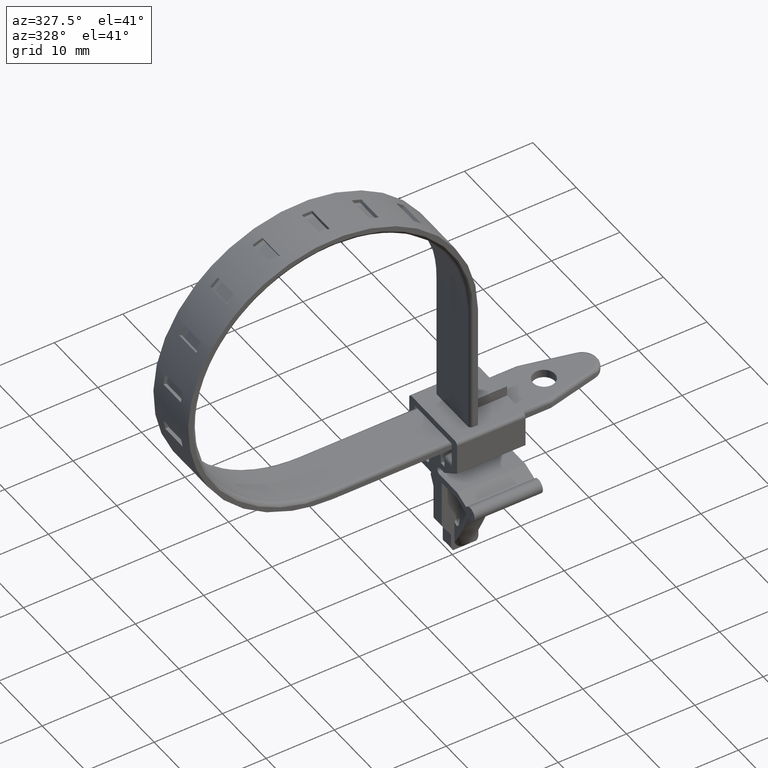
[diagram: clean part render]
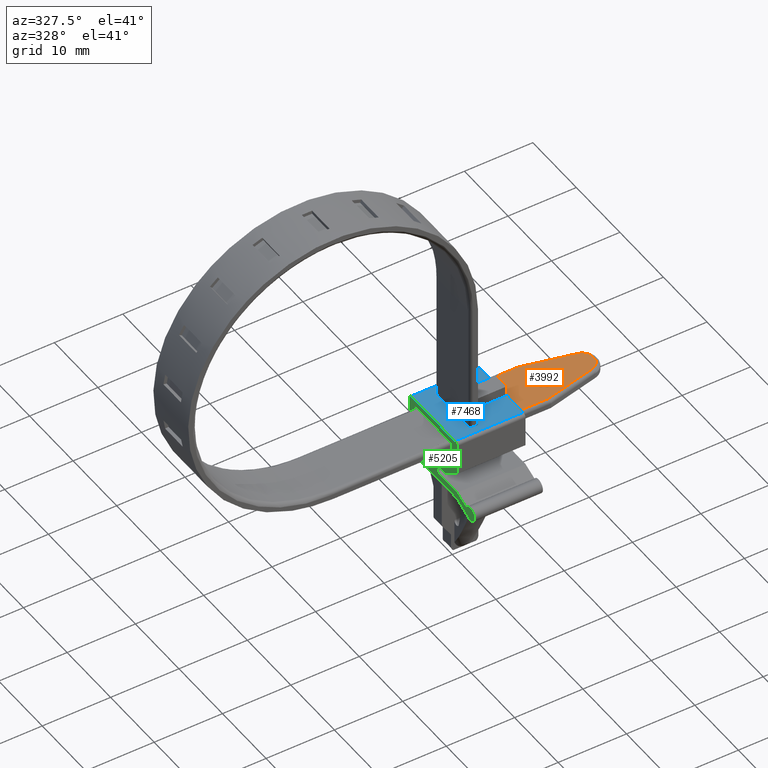
[diagram: same view with three faces highlighted in distinct colors, each labeled with its STEP entity id]
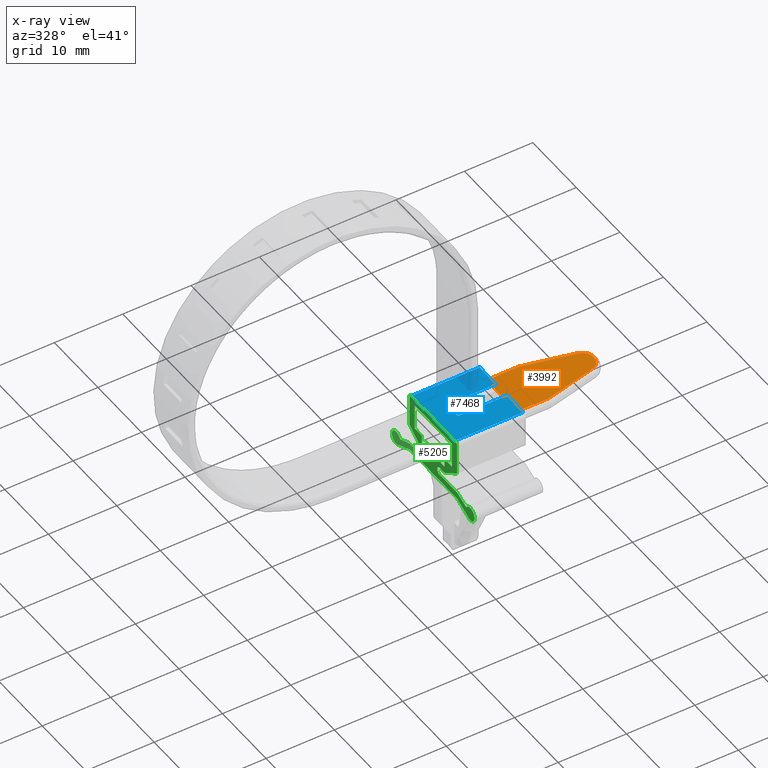
[diagram: x-ray of the same camera — body ghosted, the three highlighted faces saturated]
A machine part, auxiliary view with three faces highlighted in distinct colors.
The next image is the same camera in x-ray (body ghosted, the three faces saturated) — at least one of them is partly hidden behind the body in this view.
Their STEP definitions:

[orange] entity #3992 — the highlighted face is a freeform B-spline surface patch.
#79=CARTESIAN_POINT('',(24.521454595066182,1.141200605771610,-10.000000000000121));
#80=VERTEX_POINT('',#79);
#86=CARTESIAN_POINT('',(23.399999039114409,1.599999999999712,-10.000000000000121));
#87=VERTEX_POINT('',#86);
#88=CARTESIAN_POINT('',(24.521454595066182,1.141200605771610,-10.000000000000121));
#89=CARTESIAN_POINT('',(24.401483454346309,1.259223014013674,-10.000000000000130));
#90=CARTESIAN_POINT('',(24.177227983787269,1.418760716767663,-10.000000000000099));
#91=CARTESIAN_POINT('',(23.788314191387538,1.566940195108223,-10.000000000000140));
#92=CARTESIAN_POINT('',(23.542393760631739,1.600046267257556,-10.000000000000099));
#93=CARTESIAN_POINT('',(23.399999039114409,1.599999999999712,-10.000000000000121));
#94=B_SPLINE_CURVE_WITH_KNOTS('',3,(#88,#89,#90,#91,#92,#93),.UNSPECIFIED.,.F.,.U.,(4,1,1,4),(0.000000016535487,0.504854212649994,0.815521261713254,1.242705706128927),.UNSPECIFIED.);
#95=EDGE_CURVE('',#80,#87,#94,.T.);
#97=CARTESIAN_POINT('',(21.800000000000001,0.0,-10.000000000000121));
#98=VERTEX_POINT('',#97);
#99=CARTESIAN_POINT('',(23.399999039114409,1.599999999999712,-10.000000000000121));
#100=CARTESIAN_POINT('',(23.229814022617589,1.600106159863378,-10.000000000000130));
#101=CARTESIAN_POINT('',(22.954997995737379,1.555702594214439,-10.000000000000099));
#102=CARTESIAN_POINT('',(22.606272545159921,1.401112644741011,-10.000000000000160));
#103=CARTESIAN_POINT('',(22.326671302114860,1.204204025141999,-10.000000000000110));
#104=CARTESIAN_POINT('',(22.060912746907949,0.911067447824980,-10.000000000000110));
#105=CARTESIAN_POINT('',(21.852689811508139,0.497381472955625,-10.000000000000130));
#106=CARTESIAN_POINT('',(21.799909325162481,0.170177533660806,-10.000000000000110));
#107=CARTESIAN_POINT('',(21.800000000000001,0.0,-10.000000000000121));
#108=B_SPLINE_CURVE_WITH_KNOTS('',3,(#99,#100,#101,#102,#103,#104,#105,#106,#107),.UNSPECIFIED.,.F.,.U.,(4,1,1,1,1,1,4),(0.000000065411048,0.510517874963618,0.824689489460210,1.138872344818029,1.531548634256112,2.002818839806434,2.513336649352340),.UNSPECIFIED.);
#109=EDGE_CURVE('',#87,#98,#108,.T.);
#111=CARTESIAN_POINT('',(23.400000960885581,-1.599999999999712,-10.000000000000121));
#112=VERTEX_POINT('',#111);
#113=CARTESIAN_POINT('',(21.800000000000001,0.0,-10.000000000000121));
#114=CARTESIAN_POINT('',(21.799949961637211,-0.143994993570665,-10.000000000000130));
#115=CARTESIAN_POINT('',(21.833812773775321,-0.392676429516095,-10.000000000000099));
#116=CARTESIAN_POINT('',(21.961628672302499,-0.724024829579062,-10.000000000000149));
#117=CARTESIAN_POINT('',(22.130529255174711,-0.990696969214101,-10.000000000000110));
#118=CARTESIAN_POINT('',(22.402527660671019,-1.276621878832268,-10.000000000000149));
#119=CARTESIAN_POINT('',(22.824136014343900,-1.529211405444238,-10.000000000000069));
#120=CARTESIAN_POINT('',(23.203627815886492,-1.600178444852096,-10.000000000000171));
#121=CARTESIAN_POINT('',(23.400000960885581,-1.599999999999712,-10.000000000000121));
#122=B_SPLINE_CURVE_WITH_KNOTS('',3,(#113,#114,#115,#116,#117,#118,#119,#120,#121),.UNSPECIFIED.,.F.,.U.,(4,1,1,1,1,1,4),(0.000000064094760,0.431979118327400,0.746150868409657,1.060333626257324,1.374464961943820,1.924276151108963,2.513337732521369),.UNSPECIFIED.);
#123=EDGE_CURVE('',#98,#112,#122,.T.);
#125=CARTESIAN_POINT('',(24.541200945452381,-1.121454934756597,-10.000000000000121));
#126=VERTEX_POINT('',#125);
#127=CARTESIAN_POINT('',(23.400000960885581,-1.599999999999712,-10.000000000000121));
#128=CARTESIAN_POINT('',(23.572077223514800,-1.600098059522465,-10.000000000000110));
#129=CARTESIAN_POINT('',(23.849947777874771,-1.554711375579694,-10.000000000000130));
#130=CARTESIAN_POINT('',(24.238254332023232,-1.380410037105261,-10.000000000000130));
#131=CARTESIAN_POINT('',(24.439187839481580,-1.225336072797726,-10.000000000000140));
#132=CARTESIAN_POINT('',(24.541200945452381,-1.121454934756597,-10.000000000000121));
#133=B_SPLINE_CURVE_WITH_KNOTS('',3,(#127,#128,#129,#130,#131,#132),.UNSPECIFIED.,.F.,.U.,(4,1,1,4),(0.000000018446106,0.516199406832948,0.833847268245703,1.270631505452543),.UNSPECIFIED.);
#134=EDGE_CURVE('',#112,#126,#133,.T.);
#218=CARTESIAN_POINT('',(25.0,0.0,-10.000000000000121));
#219=VERTEX_POINT('',#218);
#220=CARTESIAN_POINT('',(24.541200945452381,-1.121454934756597,-10.000000000000121));
#221=CARTESIAN_POINT('',(24.641046770110400,-1.019925296255642,-10.000000000000121));
#222=CARTESIAN_POINT('',(24.774118204824418,-0.842218727682128,-10.000000000000130));
#223=CARTESIAN_POINT('',(24.949888076995340,-0.465905545244173,-10.000000000000110));
#224=CARTESIAN_POINT('',(25.000180596097490,-0.194201422835734,-10.000000000000179));
#225=CARTESIAN_POINT('',(25.0,0.0,-10.000000000000121));
#226=B_SPLINE_CURVE_WITH_KNOTS('',3,(#220,#221,#222,#223,#224,#225),.UNSPECIFIED.,.F.,.U.,(4,1,1,4),(0.000000016513747,0.427184196168691,0.660184423886962,1.242704935921221),.UNSPECIFIED.);
#227=EDGE_CURVE('',#126,#219,#226,.T.);
#229=CARTESIAN_POINT('',(25.0,0.0,-10.000000000000121));
#230=CARTESIAN_POINT('',(25.000053838852651,0.145597806748911,-10.000000000000110));
#231=CARTESIAN_POINT('',(24.969056627128928,0.370561673509479,-10.000000000000149));
#232=CARTESIAN_POINT('',(24.824489964593610,0.769929743867166,-10.000000000000091));
#233=CARTESIAN_POINT('',(24.663210959303441,1.002153619211049,-10.000000000000130));
#234=CARTESIAN_POINT('',(24.521454595066182,1.141200605771610,-10.000000000000121));
#235=B_SPLINE_CURVE_WITH_KNOTS('',3,(#229,#230,#231,#232,#233,#234),.UNSPECIFIED.,.F.,.U.,(4,1,1,4),(0.000000018422052,0.436784521852816,0.675020658372058,1.270632279869800),.UNSPECIFIED.);
#236=EDGE_CURVE('',#219,#80,#235,.T.);
#831=CARTESIAN_POINT('',(29.372673594154708,1.706746475485860,-10.0));
#832=VERTEX_POINT('',#831);
#852=CARTESIAN_POINT('',(21.841294518970152,3.500000000000060,-10.0));
#853=VERTEX_POINT('',#852);
#865=CARTESIAN_POINT('',(29.372673594154708,1.706746475485860,-10.0));
#866=CARTESIAN_POINT('',(21.841294518970152,3.500000000000060,-10.0));
#867=QUASI_UNIFORM_CURVE('',1,(#865,#866),.UNSPECIFIED.,.F.,.U.);
#868=EDGE_CURVE('',#832,#853,#867,.T.);
#890=CARTESIAN_POINT('',(30.699999999999999,0.353134535268953,-10.0));
#891=VERTEX_POINT('',#890);
#915=CARTESIAN_POINT('',(30.699999999999999,0.353134535268953,-10.0));
#916=CARTESIAN_POINT('',(30.664277000801299,0.526892123062567,-9.999999999999989));
#917=CARTESIAN_POINT('',(30.550353460682420,0.833649772332800,-10.000000000000030));
#918=CARTESIAN_POINT('',(30.258163588540071,1.232324406222916,-9.999999999999970));
#919=CARTESIAN_POINT('',(29.869803917017869,1.539997873074126,-10.000000000000020));
#920=CARTESIAN_POINT('',(29.545698844704919,1.667621061635030,-9.999999999999988));
#921=CARTESIAN_POINT('',(29.372673594154708,1.706746475485860,-10.0));
#922=B_SPLINE_CURVE_WITH_KNOTS('',3,(#915,#916,#917,#918,#919,#920,#921),.UNSPECIFIED.,.F.,.U.,(4,1,1,1,4),(0.000000061334182,0.532168217226160,0.970439345795977,1.471284850166857,2.003453006058896),.UNSPECIFIED.);
#923=EDGE_CURVE('',#891,#832,#922,.T.);
#942=CARTESIAN_POINT('',(30.699999999999999,-0.353134535268953,-10.0));
#943=VERTEX_POINT('',#942);
#962=CARTESIAN_POINT('',(30.699999999999999,-0.353134535268953,-10.0));
#963=CARTESIAN_POINT('',(30.699999999999999,0.353134535268953,-10.0));
#964=QUASI_UNIFORM_CURVE('',1,(#962,#963),.UNSPECIFIED.,.F.,.U.);
#965=EDGE_CURVE('',#943,#891,#964,.T.);
#987=CARTESIAN_POINT('',(29.372673594143901,-1.706746475488305,-10.0));
#988=VERTEX_POINT('',#987);
#1014=CARTESIAN_POINT('',(29.372673594143901,-1.706746475488305,-10.0));
#1015=CARTESIAN_POINT('',(29.576271248106849,-1.660789095066875,-10.000000000000011));
#1016=CARTESIAN_POINT('',(29.878641117070970,-1.532051587701077,-9.999999999999977));
#1017=CARTESIAN_POINT('',(30.245832846574650,-1.235721040569970,-10.000000000000030));
#1018=CARTESIAN_POINT('',(30.532584822866990,-0.872555421323090,-9.999999999999975));
#1019=CARTESIAN_POINT('',(30.660118510977121,-0.547353143955002,-10.000000000000050));
#1020=CARTESIAN_POINT('',(30.699999999999999,-0.353134535268953,-10.0));
#1021=B_SPLINE_CURVE_WITH_KNOTS('',3,(#1014,#1015,#1016,#1017,#1018,#1019,#1020),.UNSPECIFIED.,.F.,.U.,(4,1,1,1,4),(0.000000061333609,0.626083115551618,0.970439345801023,1.408677020007468,2.003453006069987),.UNSPECIFIED.);
#1022=EDGE_CURVE('',#988,#943,#1021,.T.);
#1041=CARTESIAN_POINT('',(21.841294518969850,-3.500000000000000,-10.0));
#1042=VERTEX_POINT('',#1041);
#1061=CARTESIAN_POINT('',(21.841294518969850,-3.500000000000000,-10.0));
#1062=CARTESIAN_POINT('',(29.372673594143901,-1.706746475488305,-10.0));
#1063=QUASI_UNIFORM_CURVE('',1,(#1061,#1062),.UNSPECIFIED.,.F.,.U.);
#1064=EDGE_CURVE('',#1042,#988,#1063,.T.);
#3885=CARTESIAN_POINT('',(17.199999999999999,3.500000000000060,-10.0));
#3886=VERTEX_POINT('',#3885);
#3894=CARTESIAN_POINT('',(21.841294518970152,3.500000000000060,-10.0));
#3895=CARTESIAN_POINT('',(17.199999999999999,3.500000000000060,-10.0));
#3896=QUASI_UNIFORM_CURVE('',1,(#3894,#3895),.UNSPECIFIED.,.F.,.U.);
#3897=EDGE_CURVE('',#853,#3886,#3896,.T.);
#3934=CARTESIAN_POINT('',(17.199999999999999,-3.499999999999950,-10.0));
#3935=VERTEX_POINT('',#3934);
#3957=CARTESIAN_POINT('',(17.199999999999999,-3.499999999999950,-10.0));
#3958=CARTESIAN_POINT('',(21.841294518969850,-3.500000000000000,-10.0));
#3959=QUASI_UNIFORM_CURVE('',1,(#3957,#3958),.UNSPECIFIED.,.F.,.U.);
#3960=EDGE_CURVE('',#3935,#1042,#3959,.T.);
#3965=CARTESIAN_POINT('',(16.525675786535668,-3.849649986432643,-10.0));
#3966=CARTESIAN_POINT('',(31.374325299758990,-3.849649986432643,-10.0));
#3967=CARTESIAN_POINT('',(16.525675786535668,3.849650174187337,-10.0));
#3968=CARTESIAN_POINT('',(31.374325299758990,3.849650174187337,-10.0));
#3969=B_SPLINE_SURFACE_WITH_KNOTS('',1,1,((#3965,#3967),(#3966,#3968)),.UNSPECIFIED.,.F.,.F.,.U.,(2,2),(2,2),(0.0,14.848649513223330),(0.0,7.699300160619981),.UNSPECIFIED.);
#3970=CARTESIAN_POINT('',(17.199999999999999,-3.499999999999950,-10.0));
#3971=CARTESIAN_POINT('',(17.199999999999999,3.500000000000060,-10.0));
#3972=QUASI_UNIFORM_CURVE('',1,(#3970,#3971),.UNSPECIFIED.,.F.,.U.);
#3973=EDGE_CURVE('',#3935,#3886,#3972,.T.);
#3974=ORIENTED_EDGE('',*,*,#3973,.F.);
#3975=ORIENTED_EDGE('',*,*,#3960,.T.);
#3976=ORIENTED_EDGE('',*,*,#1064,.T.);
#3977=ORIENTED_EDGE('',*,*,#1022,.T.);
#3978=ORIENTED_EDGE('',*,*,#965,.T.);
#3979=ORIENTED_EDGE('',*,*,#923,.T.);
#3980=ORIENTED_EDGE('',*,*,#868,.T.);
#3981=ORIENTED_EDGE('',*,*,#3897,.T.);
#3982=EDGE_LOOP('',(#3974,#3975,#3976,#3977,#3978,#3979,#3980,#3981));
#3983=FACE_OUTER_BOUND('',#3982,.T.);
#3984=ORIENTED_EDGE('',*,*,#109,.F.);
#3985=ORIENTED_EDGE('',*,*,#95,.F.);
#3986=ORIENTED_EDGE('',*,*,#236,.F.);
#3987=ORIENTED_EDGE('',*,*,#227,.F.);
#3988=ORIENTED_EDGE('',*,*,#134,.F.);
#3989=ORIENTED_EDGE('',*,*,#123,.F.);
#3990=EDGE_LOOP('',(#3984,#3985,#3986,#3987,#3988,#3989));
#3991=FACE_BOUND('',#3990,.T.);
#3992=ADVANCED_FACE('',(#3983,#3991),#3969,.T.);

[blue] entity #7468 — the highlighted face is a freeform B-spline surface patch.
#3336=CARTESIAN_POINT('',(10.0,-1.250000000000000,-9.000005499999984));
#3337=VERTEX_POINT('',#3336);
#3853=CARTESIAN_POINT('',(10.0,1.250000000000000,-9.000005499999984));
#3854=VERTEX_POINT('',#3853);
#4056=CARTESIAN_POINT('',(17.199999999999999,-1.250000000000000,-9.000010999999770));
#4057=VERTEX_POINT('',#4056);
#4058=CARTESIAN_POINT('',(17.199999999999999,-1.250000000000000,-9.000010999999770));
#4059=CARTESIAN_POINT('',(10.0,-1.250000000000000,-9.000005499999984));
#4060=QUASI_UNIFORM_CURVE('',1,(#4058,#4059),.UNSPECIFIED.,.F.,.U.);
#4061=EDGE_CURVE('',#4057,#3337,#4060,.T.);
#4082=CARTESIAN_POINT('',(17.199999999999999,1.250000000000000,-9.000010999999770));
#4083=VERTEX_POINT('',#4082);
#4089=CARTESIAN_POINT('',(17.199999999999999,1.250000000000000,-9.000010999999770));
#4090=CARTESIAN_POINT('',(10.0,1.250000000000000,-9.000005499999984));
#4091=QUASI_UNIFORM_CURVE('',1,(#4089,#4090),.UNSPECIFIED.,.F.,.U.);
#4092=EDGE_CURVE('',#4083,#3854,#4091,.T.);
#4107=CARTESIAN_POINT('',(10.0,-1.250000000000000,-9.000005499999984));
#4108=CARTESIAN_POINT('',(10.0,1.250000000000000,-9.000005499999984));
#4109=QUASI_UNIFORM_CURVE('',1,(#4107,#4108),.UNSPECIFIED.,.F.,.U.);
#4110=EDGE_CURVE('',#3337,#3854,#4109,.T.);
#5137=CARTESIAN_POINT('',(7.200000000000100,-5.0,-9.000010999999770));
#5138=VERTEX_POINT('',#5137);
#5149=CARTESIAN_POINT('',(7.200000000000100,5.0,-9.000010999999780));
#5150=VERTEX_POINT('',#5149);
#5151=CARTESIAN_POINT('',(7.200000000000100,5.0,-9.000010999999780));
#5152=CARTESIAN_POINT('',(7.200000000000100,-5.0,-9.000010999999770));
#5153=QUASI_UNIFORM_CURVE('',1,(#5151,#5152),.UNSPECIFIED.,.F.,.U.);
#5154=EDGE_CURVE('',#5150,#5138,#5153,.T.);
#5492=CARTESIAN_POINT('',(17.199999999999999,-5.0,-9.000010999999770));
#5493=VERTEX_POINT('',#5492);
#5505=CARTESIAN_POINT('',(17.199999999999999,-5.0,-9.000010999999770));
#5506=CARTESIAN_POINT('',(7.200000000000100,-5.0,-9.000010999999770));
#5507=QUASI_UNIFORM_CURVE('',1,(#5505,#5506),.UNSPECIFIED.,.F.,.U.);
#5508=EDGE_CURVE('',#5493,#5138,#5507,.T.);
#5528=CARTESIAN_POINT('',(17.199999999999999,5.0,-9.000010999999780));
#5529=VERTEX_POINT('',#5528);
#5530=CARTESIAN_POINT('',(17.199999999999999,5.0,-9.000010999999780));
#5531=CARTESIAN_POINT('',(7.200000000000100,5.0,-9.000010999999780));
#5532=QUASI_UNIFORM_CURVE('',1,(#5530,#5531),.UNSPECIFIED.,.F.,.U.);
#5533=EDGE_CURVE('',#5529,#5150,#5532,.T.);
#7351=CARTESIAN_POINT('',(17.199999999999999,5.0,-9.000010999999780));
#7352=CARTESIAN_POINT('',(17.199999999999999,1.250000000000000,-9.000010999999770));
#7353=QUASI_UNIFORM_CURVE('',1,(#7351,#7352),.UNSPECIFIED.,.F.,.U.);
#7354=EDGE_CURVE('',#5529,#4083,#7353,.T.);
#7359=CARTESIAN_POINT('',(17.199999999999999,-1.250000000000000,-9.000010999999770));
#7360=CARTESIAN_POINT('',(17.199999999999999,-5.0,-9.000010999999770));
#7361=QUASI_UNIFORM_CURVE('',1,(#7359,#7360),.UNSPECIFIED.,.F.,.U.);
#7362=EDGE_CURVE('',#4057,#5493,#7361,.T.);
#7453=CARTESIAN_POINT('',(6.700499795909328,-5.499499980618060,-9.000010999999780));
#7454=CARTESIAN_POINT('',(6.700499795909328,5.499500248838961,-9.000010999999780));
#7455=CARTESIAN_POINT('',(17.699501008753479,-5.499499980618060,-9.000010999999780));
#7456=CARTESIAN_POINT('',(17.699501008753479,5.499500248838961,-9.000010999999780));
#7457=B_SPLINE_SURFACE_WITH_KNOTS('',1,1,((#7453,#7455),(#7454,#7456)),.UNSPECIFIED.,.F.,.F.,.U.,(2,2),(2,2),(0.0,10.999000229457019),(0.0,10.999001212844149),.UNSPECIFIED.);
#7458=ORIENTED_EDGE('',*,*,#4092,.F.);
#7459=ORIENTED_EDGE('',*,*,#7354,.F.);
#7460=ORIENTED_EDGE('',*,*,#5533,.T.);
#7461=ORIENTED_EDGE('',*,*,#5154,.T.);
#7462=ORIENTED_EDGE('',*,*,#5508,.F.);
#7463=ORIENTED_EDGE('',*,*,#7362,.F.);
#7464=ORIENTED_EDGE('',*,*,#4061,.T.);
#7465=ORIENTED_EDGE('',*,*,#4110,.T.);
#7466=EDGE_LOOP('',(#7458,#7459,#7460,#7461,#7462,#7463,#7464,#7465));
#7467=FACE_OUTER_BOUND('',#7466,.T.);
#7468=ADVANCED_FACE('',(#7467),#7457,.F.);

[green] entity #5205 — the highlighted face is a freeform B-spline surface patch.
#3598=CARTESIAN_POINT('',(7.200000000000000,-3.499999999999950,-10.0));
#3599=VERTEX_POINT('',#3598);
#3605=CARTESIAN_POINT('',(7.200000000000000,3.500000000000060,-10.0));
#3606=VERTEX_POINT('',#3605);
#3607=CARTESIAN_POINT('',(7.200000000000000,-3.499999999999950,-10.0));
#3608=CARTESIAN_POINT('',(7.200000000000000,3.500000000000060,-10.0));
#3609=QUASI_UNIFORM_CURVE('',1,(#3607,#3608),.UNSPECIFIED.,.F.,.U.);
#3610=EDGE_CURVE('',#3599,#3606,#3609,.T.);
#3903=CARTESIAN_POINT('',(7.200000000000000,3.503316606502225,-10.000010999999761));
#3904=VERTEX_POINT('',#3903);
#3905=CARTESIAN_POINT('',(7.200000000000000,3.500000000000060,-10.0));
#3906=CARTESIAN_POINT('',(7.200000000000000,3.503316606502225,-10.000010999999761));
#3907=QUASI_UNIFORM_CURVE('',1,(#3905,#3906),.UNSPECIFIED.,.F.,.U.);
#3908=EDGE_CURVE('',#3606,#3904,#3907,.T.);
#3941=CARTESIAN_POINT('',(7.200000000000100,-3.503316606502165,-10.000010999999761));
#3942=VERTEX_POINT('',#3941);
#3948=CARTESIAN_POINT('',(7.200000000000100,-3.503316606502165,-10.000010999999761));
#3949=CARTESIAN_POINT('',(7.200000000000000,-3.499999999999950,-10.0));
#3950=QUASI_UNIFORM_CURVE('',1,(#3948,#3949),.UNSPECIFIED.,.F.,.U.);
#3951=EDGE_CURVE('',#3942,#3599,#3950,.T.);
#4129=CARTESIAN_POINT('',(7.200000000000000,2.600000000000000,-16.000010999999748));
#4130=VERTEX_POINT('',#4129);
#4136=CARTESIAN_POINT('',(7.200000000000000,5.500000000000000,-14.000010999999780));
#4137=VERTEX_POINT('',#4136);
#4138=CARTESIAN_POINT('',(7.200000000000000,5.500000000000000,-14.000010999999780));
#4139=CARTESIAN_POINT('',(7.200000000000000,2.600000000000000,-16.000010999999748));
#4140=QUASI_UNIFORM_CURVE('',1,(#4138,#4139),.UNSPECIFIED.,.F.,.U.);
#4141=EDGE_CURVE('',#4137,#4130,#4140,.T.);
#4165=CARTESIAN_POINT('',(7.200000000000000,-5.500000000000000,-14.000010999999761));
#4166=VERTEX_POINT('',#4165);
#4172=CARTESIAN_POINT('',(7.200000000000000,-2.600000000000000,-16.000010999999748));
#4173=VERTEX_POINT('',#4172);
#4174=CARTESIAN_POINT('',(7.200000000000000,-2.600000000000000,-16.000010999999748));
#4175=CARTESIAN_POINT('',(7.200000000000000,-5.500000000000000,-14.000010999999761));
#4176=QUASI_UNIFORM_CURVE('',1,(#4174,#4175),.UNSPECIFIED.,.F.,.U.);
#4177=EDGE_CURVE('',#4173,#4166,#4176,.T.);
#4365=CARTESIAN_POINT('',(7.200000000000000,1.750000000000000,-14.034589418682200));
#4366=VERTEX_POINT('',#4365);
#4378=CARTESIAN_POINT('',(7.200000000000000,-1.750000000000000,-14.034589418682200));
#4379=VERTEX_POINT('',#4378);
#4380=CARTESIAN_POINT('',(7.200000000000000,-1.750000000000000,-14.034589418682200));
#4381=CARTESIAN_POINT('',(7.200000000000000,1.750000000000000,-14.034589418682200));
#4382=QUASI_UNIFORM_CURVE('',1,(#4380,#4381),.UNSPECIFIED.,.F.,.U.);
#4383=EDGE_CURVE('',#4379,#4366,#4382,.T.);
#4572=CARTESIAN_POINT('',(7.200000000000000,-1.750000000000000,-15.000010999999750));
#4573=VERTEX_POINT('',#4572);
#4574=CARTESIAN_POINT('',(7.200000000000000,-1.750000000000000,-14.034589418682200));
#4575=CARTESIAN_POINT('',(7.200000000000000,-1.750000000000000,-15.000010999999750));
#4576=QUASI_UNIFORM_CURVE('',1,(#4574,#4575),.UNSPECIFIED.,.F.,.U.);
#4577=EDGE_CURVE('',#4379,#4573,#4576,.T.);
#4618=CARTESIAN_POINT('',(7.200000000000000,1.750000000000000,-15.000010999999750));
#4619=VERTEX_POINT('',#4618);
#4625=CARTESIAN_POINT('',(7.200000000000000,1.750000000000000,-14.034589418682200));
#4626=CARTESIAN_POINT('',(7.200000000000000,1.750000000000000,-15.000010999999750));
#4627=QUASI_UNIFORM_CURVE('',1,(#4625,#4626),.UNSPECIFIED.,.F.,.U.);
#4628=EDGE_CURVE('',#4366,#4619,#4627,.T.);
#4664=CARTESIAN_POINT('',(7.200000000000000,4.250000000000000,-13.742594748854639));
#4665=VERTEX_POINT('',#4664);
#4678=CARTESIAN_POINT('',(7.200000000000000,2.600000000000045,-13.742594748854639));
#4679=VERTEX_POINT('',#4678);
#4680=CARTESIAN_POINT('',(7.200000000000000,2.600000000000045,-13.742594748854639));
#4681=CARTESIAN_POINT('',(7.200000000000000,4.250000000000000,-13.742594748854639));
#4682=QUASI_UNIFORM_CURVE('',1,(#4680,#4681),.UNSPECIFIED.,.F.,.U.);
#4683=EDGE_CURVE('',#4679,#4665,#4682,.T.);
#4722=CARTESIAN_POINT('',(7.200000000000000,-4.250000000000000,-13.742594748854639));
#4723=VERTEX_POINT('',#4722);
#4742=CARTESIAN_POINT('',(7.200000000000000,-2.600000000000000,-13.742594748854639));
#4743=VERTEX_POINT('',#4742);
#4754=CARTESIAN_POINT('',(7.200000000000000,-4.250000000000000,-13.742594748854639));
#4755=CARTESIAN_POINT('',(7.200000000000000,-2.600000000000000,-13.742594748854639));
#4756=QUASI_UNIFORM_CURVE('',1,(#4754,#4755),.UNSPECIFIED.,.F.,.U.);
#4757=EDGE_CURVE('',#4723,#4743,#4756,.T.);
#4795=CARTESIAN_POINT('',(7.200000000000000,-2.600000000000000,-15.000010999999750));
#4796=VERTEX_POINT('',#4795);
#4797=CARTESIAN_POINT('',(7.200000000000000,-2.600000000000000,-13.742594748854639));
#4798=CARTESIAN_POINT('',(7.200000000000000,-2.600000000000000,-15.000010999999750));
#4799=QUASI_UNIFORM_CURVE('',1,(#4797,#4798),.UNSPECIFIED.,.F.,.U.);
#4800=EDGE_CURVE('',#4743,#4796,#4799,.T.);
#4854=CARTESIAN_POINT('',(7.200000000000000,2.600000000000000,-15.000010999999750));
#4855=VERTEX_POINT('',#4854);
#4856=CARTESIAN_POINT('',(7.200000000000000,2.600000000000045,-13.742594748854639));
#4857=CARTESIAN_POINT('',(7.200000000000000,2.600000000000000,-15.000010999999750));
#4858=QUASI_UNIFORM_CURVE('',1,(#4856,#4857),.UNSPECIFIED.,.F.,.U.);
#4859=EDGE_CURVE('',#4679,#4855,#4858,.T.);
#4881=CARTESIAN_POINT('',(7.200000000000100,4.250000000000000,-10.000010999999761));
#4882=VERTEX_POINT('',#4881);
#4883=CARTESIAN_POINT('',(7.200000000000100,4.250000000000000,-10.000010999999761));
#4884=CARTESIAN_POINT('',(7.200000000000000,4.250000000000000,-13.742594748854639));
#4885=QUASI_UNIFORM_CURVE('',1,(#4883,#4884),.UNSPECIFIED.,.F.,.U.);
#4886=EDGE_CURVE('',#4882,#4665,#4885,.T.);
#4916=CARTESIAN_POINT('',(7.200000000000000,3.503316606502225,-10.000010999999761));
#4917=CARTESIAN_POINT('',(7.200000000000100,4.250000000000000,-10.000010999999761));
#4918=QUASI_UNIFORM_CURVE('',1,(#4916,#4917),.UNSPECIFIED.,.F.,.U.);
#4919=EDGE_CURVE('',#3904,#4882,#4918,.T.);
#4925=CARTESIAN_POINT('',(7.200000000000000,10.448732544283780,-19.919420936786569));
#4926=CARTESIAN_POINT('',(7.200000000000000,-10.448822434467290,-19.919420936786569));
#4927=CARTESIAN_POINT('',(7.199999999999999,10.448732544283780,-8.480534852597149));
#4928=CARTESIAN_POINT('',(7.199999999999999,-10.448822434467290,-8.480534852597149));
#4929=B_SPLINE_SURFACE_WITH_KNOTS('',1,1,((#4925,#4927),(#4926,#4928)),.UNSPECIFIED.,.F.,.F.,.U.,(2,2),(2,2),(0.0,20.897554978751071),(0.0,11.438886084189420),.UNSPECIFIED.);
#4930=CARTESIAN_POINT('',(7.200000000000100,5.500000000000000,-9.500010999999780));
#4931=VERTEX_POINT('',#4930);
#4932=CARTESIAN_POINT('',(7.200000000000000,5.500000000000000,-14.000010999999780));
#4933=CARTESIAN_POINT('',(7.200000000000100,5.500000000000000,-9.500010999999780));
#4934=QUASI_UNIFORM_CURVE('',1,(#4932,#4933),.UNSPECIFIED.,.F.,.U.);
#4935=EDGE_CURVE('',#4137,#4931,#4934,.T.);
#4936=ORIENTED_EDGE('',*,*,#4935,.F.);
#4937=ORIENTED_EDGE('',*,*,#4141,.T.);
#4938=CARTESIAN_POINT('',(7.200000000000100,1.450000000000000,-16.000010999999748));
#4939=VERTEX_POINT('',#4938);
#4940=CARTESIAN_POINT('',(7.200000000000100,1.450000000000000,-16.000010999999748));
#4941=CARTESIAN_POINT('',(7.200000000000000,2.600000000000000,-16.000010999999748));
#4942=QUASI_UNIFORM_CURVE('',1,(#4940,#4941),.UNSPECIFIED.,.F.,.U.);
#4943=EDGE_CURVE('',#4939,#4130,#4942,.T.);
#4944=ORIENTED_EDGE('',*,*,#4943,.F.);
#4945=CARTESIAN_POINT('',(7.200000000000100,0.949999999999989,-16.500010999999748));
#4946=VERTEX_POINT('',#4945);
#4947=CARTESIAN_POINT('',(7.200000000000100,0.949999999999989,-16.500010999999748));
#4948=CARTESIAN_POINT('',(7.200000000000088,0.949982599498308,-16.450923593902161));
#4949=CARTESIAN_POINT('',(7.200000000000125,0.964572003411784,-16.352758298968158));
#4950=CARTESIAN_POINT('',(7.200000000000065,1.035250106057184,-16.203196275329852));
#4951=CARTESIAN_POINT('',(7.200000000000139,1.144335115963493,-16.094109474730029));
#4952=CARTESIAN_POINT('',(7.200000000000051,1.290502228412298,-16.018328268868508));
#4953=CARTESIAN_POINT('',(7.200000000000198,1.388632123063589,-15.999956326942280));
#4954=CARTESIAN_POINT('',(7.200000000000100,1.450000000000000,-16.000010999999748));
#4955=B_SPLINE_CURVE_WITH_KNOTS('',3,(#4947,#4948,#4949,#4950,#4951,#4952,#4953,#4954),.UNSPECIFIED.,.F.,.U.,(4,1,1,1,1,4),(0.000000158279727,0.147261902870911,0.294543659625683,0.490875519979109,0.601335892048988,0.785417872210383),.UNSPECIFIED.);
#4956=EDGE_CURVE('',#4946,#4939,#4955,.T.);
#4957=ORIENTED_EDGE('',*,*,#4956,.F.);
#4958=CARTESIAN_POINT('',(7.200000000000100,0.949999999999989,-16.600010999999899));
#4959=VERTEX_POINT('',#4958);
#4960=CARTESIAN_POINT('',(7.200000000000100,0.949999999999989,-16.600010999999899));
#4961=CARTESIAN_POINT('',(7.200000000000100,0.949999999999989,-16.500010999999748));
#4962=QUASI_UNIFORM_CURVE('',1,(#4960,#4961),.UNSPECIFIED.,.F.,.U.);
#4963=EDGE_CURVE('',#4959,#4946,#4962,.T.);
#4964=ORIENTED_EDGE('',*,*,#4963,.F.);
#4965=CARTESIAN_POINT('',(7.200000000000100,1.450000000000000,-17.100010999999899));
#4966=VERTEX_POINT('',#4965);
#4967=CARTESIAN_POINT('',(7.200000000000100,1.450000000000000,-17.100010999999899));
#4968=CARTESIAN_POINT('',(7.200000000000127,1.372248048258264,-17.100137687965180));
#4969=CARTESIAN_POINT('',(7.200000000000070,1.257845799011685,-17.072759402922209));
#4970=CARTESIAN_POINT('',(7.200000000000138,1.119853535859497,-16.982940713371729));
#4971=CARTESIAN_POINT('',(7.200000000000100,1.036549098682106,-16.891030959353611));
#4972=CARTESIAN_POINT('',(7.200000000000092,0.968315651948844,-16.759511220223722));
#4973=CARTESIAN_POINT('',(7.200000000000107,0.949943317192608,-16.661380192602241));
#4974=CARTESIAN_POINT('',(7.200000000000100,0.949999999999989,-16.600010999999899));
#4975=B_SPLINE_CURVE_WITH_KNOTS('',3,(#4967,#4968,#4969,#4970,#4971,#4972,#4973,#4974),.UNSPECIFIED.,.F.,.U.,(4,1,1,1,1,4),(0.000000158275671,0.233171841782576,0.343632002136845,0.490875519978121,0.601335892048527,0.785417872210416),.UNSPECIFIED.);
#4976=EDGE_CURVE('',#4966,#4959,#4975,.T.);
#4977=ORIENTED_EDGE('',*,*,#4976,.F.);
#4978=CARTESIAN_POINT('',(7.200000000000100,5.499952000000000,-17.100010999999899));
#4979=VERTEX_POINT('',#4978);
#4980=CARTESIAN_POINT('',(7.200000000000100,5.499952000000000,-17.100010999999899));
#4981=CARTESIAN_POINT('',(7.200000000000100,1.450000000000000,-17.100010999999899));
#4982=QUASI_UNIFORM_CURVE('',1,(#4980,#4981),.UNSPECIFIED.,.F.,.U.);
#4983=EDGE_CURVE('',#4979,#4966,#4982,.T.);
#4984=ORIENTED_EDGE('',*,*,#4983,.F.);
#4985=CARTESIAN_POINT('',(7.200000000000100,7.600381428980480,-17.963235556830600));
#4986=VERTEX_POINT('',#4985);
#4987=CARTESIAN_POINT('',(7.200000000000100,7.600381428980480,-17.963235556830600));
#4988=CARTESIAN_POINT('',(7.200000000000100,5.499952000000000,-17.100010999999899));
#4989=QUASI_UNIFORM_CURVE('',1,(#4987,#4988),.UNSPECIFIED.,.F.,.U.);
#4990=EDGE_CURVE('',#4986,#4979,#4989,.T.);
#4991=ORIENTED_EDGE('',*,*,#4990,.F.);
#4992=CARTESIAN_POINT('',(7.200000000000100,9.474853767573791,-18.177375550033950));
#4993=VERTEX_POINT('',#4992);
#4994=CARTESIAN_POINT('',(7.200000000000100,7.600381428980480,-17.963235556830600));
#4995=CARTESIAN_POINT('',(7.200000000000086,7.645201354048777,-17.870819669093478));
#4996=CARTESIAN_POINT('',(7.200000000000132,7.767360800625868,-17.694653639589891));
#4997=CARTESIAN_POINT('',(7.200000000000075,8.000947386543224,-17.518179890909909));
#4998=CARTESIAN_POINT('',(7.200000000000126,8.230145714967154,-17.429951830576510));
#4999=CARTESIAN_POINT('',(7.200000000000145,8.439867542326752,-17.394932602602559));
#5000=CARTESIAN_POINT('',(7.200000000000042,8.685281078881424,-17.403873819442119));
#5001=CARTESIAN_POINT('',(7.200000000000041,8.920240235189478,-17.480696478412732));
#5002=CARTESIAN_POINT('',(7.200000000000111,9.154094941099626,-17.629370869344019));
#5003=CARTESIAN_POINT('',(7.200000000000204,9.354523454541612,-17.842757085803310));
#5004=CARTESIAN_POINT('',(7.200000000000091,9.447794810164119,-18.058435248919150));
#5005=CARTESIAN_POINT('',(7.200000000000100,9.474853767573791,-18.177375550033950));
#5006=B_SPLINE_CURVE_WITH_KNOTS('',3,(#4994,#4995,#4996,#4997,#4998,#4999,#5000,#5001,#5002,#5003,#5004,#5005),.UNSPECIFIED.,.F.,.U.,(4,1,1,1,1,1,1,1,1,4),(0.000000293507236,0.308128980447826,0.635536049527826,0.866654904102338,1.039975522138861,1.271042892386997,1.598453988466281,1.771788435695864,2.099200370187702,2.465102814702948),.UNSPECIFIED.);
#5007=EDGE_CURVE('',#4986,#4993,#5006,.T.);
#5008=ORIENTED_EDGE('',*,*,#5007,.T.);
#5009=CARTESIAN_POINT('',(7.200000000000100,7.879160815548421,-19.183986959648550));
#5010=VERTEX_POINT('',#5009);
#5011=CARTESIAN_POINT('',(7.200000000000100,9.474853767573791,-18.177375550033950));
#5012=CARTESIAN_POINT('',(7.200000000000091,9.497777764779860,-18.277500649416851));
#5013=CARTESIAN_POINT('',(7.200000000000102,9.510017161338805,-18.452448009677781));
#5014=CARTESIAN_POINT('',(7.200000000000153,9.456555946383194,-18.731435007361299));
#5015=CARTESIAN_POINT('',(7.199999999999946,9.338334551655768,-18.970536171295301));
#5016=CARTESIAN_POINT('',(7.200000000000282,9.122682546055941,-19.202966204092512));
#5017=CARTESIAN_POINT('',(7.199999999999994,8.861360872284084,-19.350761830112472));
#5018=CARTESIAN_POINT('',(7.200000000000163,8.543668547112675,-19.414072247063530));
#5019=CARTESIAN_POINT('',(7.200000000000048,8.207107768420569,-19.379791040362282));
#5020=CARTESIAN_POINT('',(7.200000000000191,7.984765204814997,-19.267797339508348));
#5021=CARTESIAN_POINT('',(7.200000000000100,7.879160815548421,-19.183986959648550));
#5022=B_SPLINE_CURVE_WITH_KNOTS('',3,(#5011,#5012,#5013,#5014,#5015,#5016,#5017,#5018,#5019,#5020,#5021),.UNSPECIFIED.,.F.,.U.,(4,1,1,1,1,1,1,1,4),(0.000000293508839,0.308128984667774,0.519977368193850,0.847384455090824,1.097767871298369,1.463639744553562,1.733271434802076,2.060685642119448,2.465102848461039),.UNSPECIFIED.);
#5023=EDGE_CURVE('',#4993,#5010,#5022,.T.);
#5024=ORIENTED_EDGE('',*,*,#5023,.T.);
#5025=CARTESIAN_POINT('',(7.200000000000100,5.499952000000000,-18.100010999999899));
#5026=VERTEX_POINT('',#5025);
#5027=CARTESIAN_POINT('',(7.200000000000100,5.499952000000000,-18.100010999999899));
#5028=CARTESIAN_POINT('',(7.200000000000100,7.879160815548421,-19.183986959648550));
#5029=QUASI_UNIFORM_CURVE('',1,(#5027,#5028),.UNSPECIFIED.,.F.,.U.);
#5030=EDGE_CURVE('',#5026,#5010,#5029,.T.);
#5031=ORIENTED_EDGE('',*,*,#5030,.F.);
#5032=CARTESIAN_POINT('',(7.200000000000100,-5.500048000000000,-18.100010999999899));
#5033=VERTEX_POINT('',#5032);
#5034=CARTESIAN_POINT('',(7.200000000000100,-5.500048000000000,-18.100010999999899));
#5035=CARTESIAN_POINT('',(7.200000000000100,5.499952000000000,-18.100010999999899));
#5036=QUASI_UNIFORM_CURVE('',1,(#5034,#5035),.UNSPECIFIED.,.F.,.U.);
#5037=EDGE_CURVE('',#5033,#5026,#5036,.T.);
#5038=ORIENTED_EDGE('',*,*,#5037,.F.);
#5039=CARTESIAN_POINT('',(7.200000000000100,-7.879256815548451,-19.183986959648550));
#5040=VERTEX_POINT('',#5039);
#5041=CARTESIAN_POINT('',(7.200000000000100,-7.879256815548451,-19.183986959648550));
#5042=CARTESIAN_POINT('',(7.200000000000100,-5.500048000000000,-18.100010999999899));
#5043=QUASI_UNIFORM_CURVE('',1,(#5041,#5042),.UNSPECIFIED.,.F.,.U.);
#5044=EDGE_CURVE('',#5040,#5033,#5043,.T.);
#5045=ORIENTED_EDGE('',*,*,#5044,.F.);
#5046=CARTESIAN_POINT('',(7.200000000000100,-9.474949706095918,-18.177375280827722));
#5047=VERTEX_POINT('',#5046);
#5048=CARTESIAN_POINT('',(7.200000000000100,-7.879256815548451,-19.183986959648550));
#5049=CARTESIAN_POINT('',(7.200000000000105,-7.959750574083696,-19.247791047731940));
#5050=CARTESIAN_POINT('',(7.200000000000107,-8.140621028106159,-19.350232437827032));
#5051=CARTESIAN_POINT('',(7.200000000000086,-8.439379329357404,-19.413181268745820));
#5052=CARTESIAN_POINT('',(7.200000000000121,-8.743012151879999,-19.385478012987161));
#5053=CARTESIAN_POINT('',(7.200000000000131,-9.019456945285999,-19.272021150608531));
#5054=CARTESIAN_POINT('',(7.200000000000094,-9.254969527456776,-19.078426088217480));
#5055=CARTESIAN_POINT('',(7.200000000000132,-9.419824115548167,-18.829202844454159));
#5056=CARTESIAN_POINT('',(7.200000000000004,-9.511256411564078,-18.518011399131101));
#5057=CARTESIAN_POINT('',(7.200000000000213,-9.502203909008772,-18.296267775509520));
#5058=CARTESIAN_POINT('',(7.200000000000100,-9.474949706095918,-18.177375280827722));
#5059=B_SPLINE_CURVE_WITH_KNOTS('',3,(#5048,#5049,#5050,#5051,#5052,#5053,#5054,#5055,#5056,#5057,#5058),.UNSPECIFIED.,.F.,.U.,(4,1,1,1,1,1,1,1,4),(0.000000293513684,0.308129019183823,0.616277164218869,0.905168909650522,1.213327927626498,1.502150534593410,1.810307571625013,2.099200634100848,2.465103124610577),.UNSPECIFIED.);
#5060=EDGE_CURVE('',#5040,#5047,#5059,.T.);
#5061=ORIENTED_EDGE('',*,*,#5060,.T.);
#5062=CARTESIAN_POINT('',(7.200000000000100,-7.600477000000000,-17.963235999999899));
#5063=VERTEX_POINT('',#5062);
#5064=CARTESIAN_POINT('',(7.200000000000100,-9.474949706095918,-18.177375280827722));
#5065=CARTESIAN_POINT('',(7.200000000000093,-9.446484591213014,-18.052167105100001));
#5066=CARTESIAN_POINT('',(7.200000000000103,-9.345645460860155,-17.825070921090269));
#5067=CARTESIAN_POINT('',(7.200000000000097,-9.097427515102698,-17.575630101238410));
#5068=CARTESIAN_POINT('',(7.200000000000086,-8.818062616413053,-17.437142626834429));
#5069=CARTESIAN_POINT('',(7.200000000000111,-8.530828793006730,-17.387380199167811));
#5070=CARTESIAN_POINT('',(7.200000000000099,-8.266423443346074,-17.415988450359610));
#5071=CARTESIAN_POINT('',(7.200000000000096,-8.019155809524406,-17.511242600533269));
#5072=CARTESIAN_POINT('',(7.200000000000109,-7.781562618132120,-17.680155479671480));
#5073=CARTESIAN_POINT('',(7.200000000000094,-7.653661276257272,-17.853460839009831));
#5074=CARTESIAN_POINT('',(7.200000000000100,-7.600477000000000,-17.963235999999899));
#5075=B_SPLINE_CURVE_WITH_KNOTS('',3,(#5064,#5065,#5066,#5067,#5068,#5069,#5070,#5071,#5072,#5073,#5074),.UNSPECIFIED.,.F.,.U.,(4,1,1,1,1,1,1,1,4),(0.000000293535582,0.385158479793301,0.731836297680624,1.039975752807967,1.309551278857460,1.598454343089456,1.829568426564410,2.099200835945818,2.465103361670856),.UNSPECIFIED.);
#5076=EDGE_CURVE('',#5047,#5063,#5075,.T.);
#5077=ORIENTED_EDGE('',*,*,#5076,.T.);
#5078=CARTESIAN_POINT('',(7.200000000000100,-5.500048000000000,-17.100010999999899));
#5079=VERTEX_POINT('',#5078);
#5080=CARTESIAN_POINT('',(7.200000000000100,-5.500048000000000,-17.100010999999899));
#5081=CARTESIAN_POINT('',(7.200000000000100,-7.600477000000000,-17.963235999999899));
#5082=QUASI_UNIFORM_CURVE('',1,(#5080,#5081),.UNSPECIFIED.,.F.,.U.);
#5083=EDGE_CURVE('',#5079,#5063,#5082,.T.);
#5084=ORIENTED_EDGE('',*,*,#5083,.F.);
#5085=CARTESIAN_POINT('',(7.200000000000100,-1.450000000000000,-17.100010999999899));
#5086=VERTEX_POINT('',#5085);
#5087=CARTESIAN_POINT('',(7.200000000000100,-1.450000000000000,-17.100010999999899));
#5088=CARTESIAN_POINT('',(7.200000000000100,-5.500048000000000,-17.100010999999899));
#5089=QUASI_UNIFORM_CURVE('',1,(#5087,#5088),.UNSPECIFIED.,.F.,.U.);
#5090=EDGE_CURVE('',#5086,#5079,#5089,.T.);
#5091=ORIENTED_EDGE('',*,*,#5090,.F.);
#5092=CARTESIAN_POINT('',(7.200000000000100,-0.950000000000017,-16.600010999999899));
#5093=VERTEX_POINT('',#5092);
#5094=CARTESIAN_POINT('',(7.200000000000100,-0.950000000000017,-16.600010999999899));
#5095=CARTESIAN_POINT('',(7.200000000000092,-0.949905158708711,-16.669569427618580));
#5096=CARTESIAN_POINT('',(7.200000000000130,-0.974306899027182,-16.784025974078961));
#5097=CARTESIAN_POINT('',(7.200000000000091,-1.060932143816372,-16.924602899512990));
#5098=CARTESIAN_POINT('',(7.199999999999964,-1.171226406303504,-17.024595734272939));
#5099=CARTESIAN_POINT('',(7.200000000000510,-1.306828780934102,-17.086679445648311));
#5100=CARTESIAN_POINT('',(7.199999999999704,-1.405003606427877,-17.100024162573110));
#5101=CARTESIAN_POINT('',(7.200000000000100,-1.450000000000000,-17.100010999999899));
#5102=B_SPLINE_CURVE_WITH_KNOTS('',3,(#5094,#5095,#5096,#5097,#5098,#5099,#5100,#5101),.UNSPECIFIED.,.F.,.U.,(4,1,1,1,1,4),(0.000000158279552,0.208627477880437,0.343632002139496,0.490875519979845,0.650428344299359,0.785417872210347),.UNSPECIFIED.);
#5103=EDGE_CURVE('',#5093,#5086,#5102,.T.);
#5104=ORIENTED_EDGE('',*,*,#5103,.F.);
#5105=CARTESIAN_POINT('',(7.200000000000100,-0.950000000000000,-16.500010999999748));
#5106=VERTEX_POINT('',#5105);
#5107=CARTESIAN_POINT('',(7.200000000000100,-0.950000000000000,-16.500010999999748));
#5108=CARTESIAN_POINT('',(7.200000000000100,-0.950000000000017,-16.600010999999899));
#5109=QUASI_UNIFORM_CURVE('',1,(#5107,#5108),.UNSPECIFIED.,.F.,.U.);
#5110=EDGE_CURVE('',#5106,#5093,#5109,.T.);
#5111=ORIENTED_EDGE('',*,*,#5110,.F.);
#5112=CARTESIAN_POINT('',(7.200000000000100,-1.450000000000000,-16.000010999999748));
#5113=VERTEX_POINT('',#5112);
#5114=CARTESIAN_POINT('',(7.200000000000100,-1.450000000000000,-16.000010999999748));
#5115=CARTESIAN_POINT('',(7.200000000000104,-1.364040558182828,-15.999788251345750));
#5116=CARTESIAN_POINT('',(7.200000000000098,-1.229307845544299,-16.035704316661501));
#5117=CARTESIAN_POINT('',(7.200000000000118,-1.076070305099105,-16.155290725485131));
#5118=CARTESIAN_POINT('',(7.200000000000054,-0.976899109046251,-16.303718315472530));
#5119=CARTESIAN_POINT('',(7.200000000000099,-0.949910015948958,-16.430453827391240));
#5120=CARTESIAN_POINT('',(7.200000000000100,-0.950000000000000,-16.500010999999748));
#5121=B_SPLINE_CURVE_WITH_KNOTS('',3,(#5114,#5115,#5116,#5117,#5118,#5119,#5120),.UNSPECIFIED.,.F.,.U.,(4,1,1,1,4),(0.000000158279468,0.257717396436538,0.404957435787477,0.576791020050726,0.785417872210397),.UNSPECIFIED.);
#5122=EDGE_CURVE('',#5113,#5106,#5121,.T.);
#5123=ORIENTED_EDGE('',*,*,#5122,.F.);
#5124=CARTESIAN_POINT('',(7.200000000000000,-2.600000000000000,-16.000010999999748));
#5125=CARTESIAN_POINT('',(7.200000000000100,-1.450000000000000,-16.000010999999748));
#5126=QUASI_UNIFORM_CURVE('',1,(#5124,#5125),.UNSPECIFIED.,.F.,.U.);
#5127=EDGE_CURVE('',#4173,#5113,#5126,.T.);
#5128=ORIENTED_EDGE('',*,*,#5127,.F.);
#5129=ORIENTED_EDGE('',*,*,#4177,.T.);
#5130=CARTESIAN_POINT('',(7.200000000000100,-5.500000000000000,-9.500010999999770));
#5131=VERTEX_POINT('',#5130);
#5132=CARTESIAN_POINT('',(7.200000000000100,-5.500000000000000,-9.500010999999770));
#5133=CARTESIAN_POINT('',(7.200000000000000,-5.500000000000000,-14.000010999999761));
#5134=QUASI_UNIFORM_CURVE('',1,(#5132,#5133),.UNSPECIFIED.,.F.,.U.);
#5135=EDGE_CURVE('',#5131,#4166,#5134,.T.);
#5136=ORIENTED_EDGE('',*,*,#5135,.F.);
#5137=CARTESIAN_POINT('',(7.200000000000100,-5.0,-9.000010999999770));
#5138=VERTEX_POINT('',#5137);
#5139=CARTESIAN_POINT('',(7.200000000000100,-5.500000000000000,-9.500010999999770));
#5140=CARTESIAN_POINT('',(7.200000000000106,-5.500047489638706,-9.438645963351215));
#5141=CARTESIAN_POINT('',(7.200000000000095,-5.477136319717411,-9.315957944509634));
#5142=CARTESIAN_POINT('',(7.200000000000115,-5.383309056254467,-9.163649252098796));
#5143=CARTESIAN_POINT('',(7.200000000000075,-5.224790612373585,-9.036769696024219));
#5144=CARTESIAN_POINT('',(7.200000000000117,-5.085952322916895,-8.999814970516194));
#5145=CARTESIAN_POINT('',(7.200000000000100,-5.0,-9.000010999999770));
#5146=B_SPLINE_CURVE_WITH_KNOTS('',3,(#5139,#5140,#5141,#5142,#5143,#5144,#5145),.UNSPECIFIED.,.F.,.U.,(4,1,1,1,4),(0.000000158278225,0.184081757013708,0.368172453802534,0.527698567818766,0.785417872210396),.UNSPECIFIED.);
#5147=EDGE_CURVE('',#5131,#5138,#5146,.T.);
#5148=ORIENTED_EDGE('',*,*,#5147,.T.);
#5149=CARTESIAN_POINT('',(7.200000000000100,5.0,-9.000010999999780));
#5150=VERTEX_POINT('',#5149);
#5151=CARTESIAN_POINT('',(7.200000000000100,5.0,-9.000010999999780));
#5152=CARTESIAN_POINT('',(7.200000000000100,-5.0,-9.000010999999770));
#5153=QUASI_UNIFORM_CURVE('',1,(#5151,#5152),.UNSPECIFIED.,.F.,.U.);
#5154=EDGE_CURVE('',#5150,#5138,#5153,.T.);
#5155=ORIENTED_EDGE('',*,*,#5154,.F.);
#5156=CARTESIAN_POINT('',(7.200000000000100,5.0,-9.000010999999780));
#5157=CARTESIAN_POINT('',(7.200000000000098,5.040903618201602,-9.000005453874248));
#5158=CARTESIAN_POINT('',(7.200000000000105,5.139084581671146,-9.012107213660995));
#5159=CARTESIAN_POINT('',(7.200000000000106,5.290920888662660,-9.079339791969872));
#5160=CARTESIAN_POINT('',(7.200000000000101,5.405900662329042,-9.194354911473640));
#5161=CARTESIAN_POINT('',(7.200000000000095,5.481682895538272,-9.340511832351499));
#5162=CARTESIAN_POINT('',(7.200000000000117,5.500054666530601,-9.438643214295883));
#5163=CARTESIAN_POINT('',(7.200000000000100,5.500000000000000,-9.500010999999780));
#5164=B_SPLINE_CURVE_WITH_KNOTS('',3,(#5156,#5157,#5158,#5159,#5160,#5161,#5162,#5163),.UNSPECIFIED.,.F.,.U.,(4,1,1,1,1,4),(0.000000158276643,0.122716622861867,0.294543659624326,0.490875519978336,0.601335892048510,0.785417872210407),.UNSPECIFIED.);
#5165=EDGE_CURVE('',#5150,#4931,#5164,.T.);
#5166=ORIENTED_EDGE('',*,*,#5165,.T.);
#5167=EDGE_LOOP('',(#4936,#4937,#4944,#4957,#4964,#4977,#4984,#4991,#5008,#5024,#5031,#5038,#5045,#5061,#5077,#5084,#5091,#5104,#5111,#5123,#5128,#5129,#5136,#5148,#5155,#5166));
#5168=FACE_OUTER_BOUND('',#5167,.T.);
#5169=CARTESIAN_POINT('',(7.200000000000100,-4.250000000000000,-10.000010999999761));
#5170=VERTEX_POINT('',#5169);
#5171=CARTESIAN_POINT('',(7.200000000000100,-4.250000000000000,-10.000010999999761));
#5172=CARTESIAN_POINT('',(7.200000000000100,-3.503316606502165,-10.000010999999761));
#5173=QUASI_UNIFORM_CURVE('',1,(#5171,#5172),.UNSPECIFIED.,.F.,.U.);
#5174=EDGE_CURVE('',#5170,#3942,#5173,.T.);
#5175=ORIENTED_EDGE('',*,*,#5174,.F.);
#5176=CARTESIAN_POINT('',(7.200000000000000,-4.250000000000000,-13.742594748854639));
#5177=CARTESIAN_POINT('',(7.200000000000100,-4.250000000000000,-10.000010999999761));
#5178=QUASI_UNIFORM_CURVE('',1,(#5176,#5177),.UNSPECIFIED.,.F.,.U.);
#5179=EDGE_CURVE('',#4723,#5170,#5178,.T.);
#5180=ORIENTED_EDGE('',*,*,#5179,.F.);
#5181=ORIENTED_EDGE('',*,*,#4757,.T.);
#5182=ORIENTED_EDGE('',*,*,#4800,.T.);
#5183=CARTESIAN_POINT('',(7.200000000000000,-1.750000000000000,-15.000010999999750));
#5184=CARTESIAN_POINT('',(7.200000000000000,-2.600000000000000,-15.000010999999750));
#5185=QUASI_UNIFORM_CURVE('',1,(#5183,#5184),.UNSPECIFIED.,.F.,.U.);
#5186=EDGE_CURVE('',#4573,#4796,#5185,.T.);
#5187=ORIENTED_EDGE('',*,*,#5186,.F.);
#5188=ORIENTED_EDGE('',*,*,#4577,.F.);
#5189=ORIENTED_EDGE('',*,*,#4383,.T.);
#5190=ORIENTED_EDGE('',*,*,#4628,.T.);
#5191=CARTESIAN_POINT('',(7.200000000000000,2.600000000000000,-15.000010999999750));
#5192=CARTESIAN_POINT('',(7.200000000000000,1.750000000000000,-15.000010999999750));
#5193=QUASI_UNIFORM_CURVE('',1,(#5191,#5192),.UNSPECIFIED.,.F.,.U.);
#5194=EDGE_CURVE('',#4855,#4619,#5193,.T.);
#5195=ORIENTED_EDGE('',*,*,#5194,.F.);
#5196=ORIENTED_EDGE('',*,*,#4859,.F.);
#5197=ORIENTED_EDGE('',*,*,#4683,.T.);
#5198=ORIENTED_EDGE('',*,*,#4886,.F.);
#5199=ORIENTED_EDGE('',*,*,#4919,.F.);
#5200=ORIENTED_EDGE('',*,*,#3908,.F.);
#5201=ORIENTED_EDGE('',*,*,#3610,.F.);
#5202=ORIENTED_EDGE('',*,*,#3951,.F.);
#5203=EDGE_LOOP('',(#5175,#5180,#5181,#5182,#5187,#5188,#5189,#5190,#5195,#5196,#5197,#5198,#5199,#5200,#5201,#5202));
#5204=FACE_BOUND('',#5203,.T.);
#5205=ADVANCED_FACE('',(#5168,#5204),#4929,.T.);